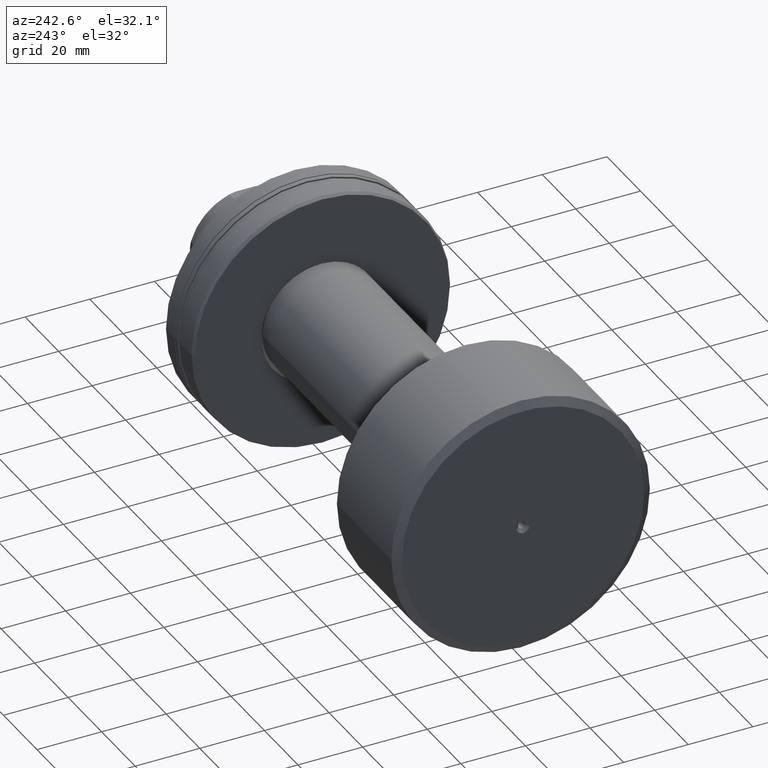
[diagram: clean part render]
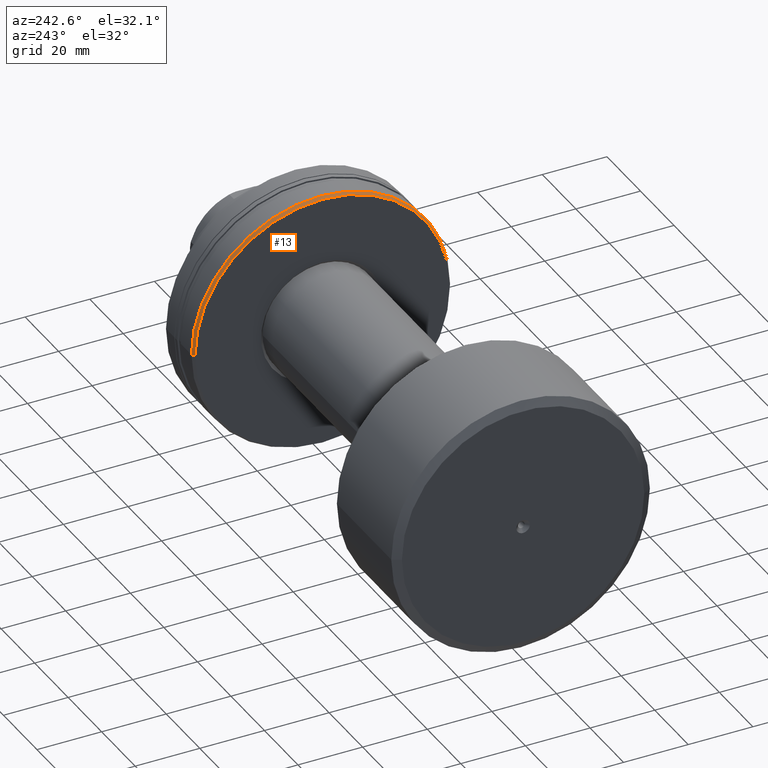
[diagram: same view with one face highlighted and labeled with its STEP entity id]
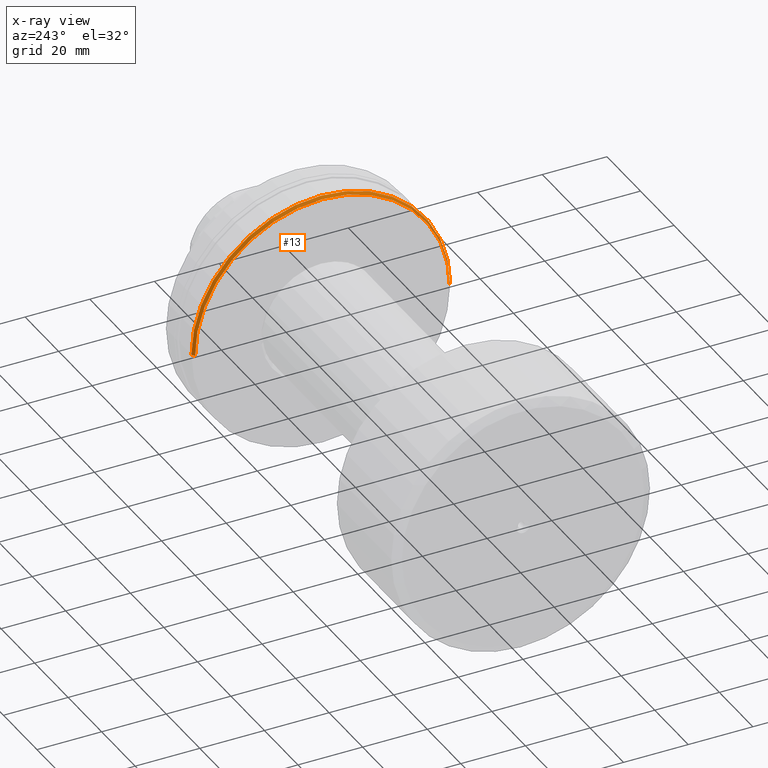
[diagram: x-ray of the same camera — body ghosted, the highlighted face saturated]
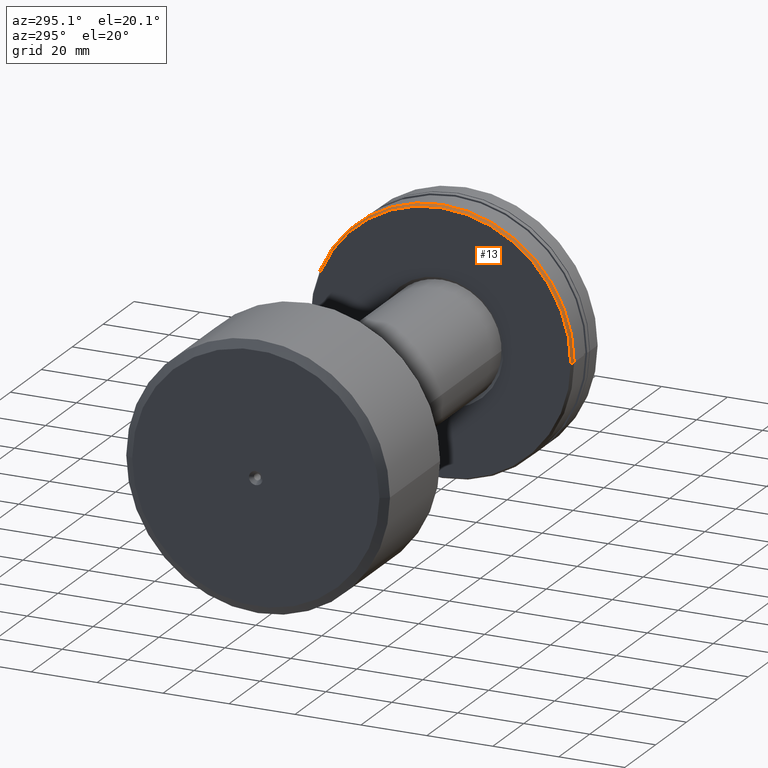
[diagram: same view with one face highlighted and labeled with its STEP entity id]
A machine part, auxiliary view. The second image highlights one B-rep face of the part: STEP entity #13.
The next image is the same camera in x-ray: the body ghosted, the highlighted face saturated — about 0% of this face is hidden behind the body in this view.
A second angle (auxiliary view) of the same face is appended — the face is thin or edge-on in the first view.
In plain terms, the highlighted conical surface has half-angle 30 deg.
Its self-contained STEP definition (entity closure, byte-faithful):
#13 = ADVANCED_FACE ( 'NONE', ( #468 ), #1106, .T. ) ;
#107 = VECTOR ( 'NONE', #1422, 1000.000000000000000 ) ;
#163 = DIRECTION ( 'NONE',  ( 0.8660254037844342667, 0.5000000000000074385, 0.000000000000000000 ) ) ;
#189 = ORIENTED_EDGE ( 'NONE', *, *, #2052, .F. ) ;
#194 = VERTEX_POINT ( 'NONE', #983 ) ;
#213 = DIRECTION ( 'NONE',  ( 1.000000000000000000, 3.738146982434194072E-16, -0.000000000000000000 ) ) ;
#291 = CARTESIAN_POINT ( 'NONE',  ( -40.20000000000000995, -3.708233295962654957E-15, 0.000000000000000000 ) ) ;
#370 = DIRECTION ( 'NONE',  ( -3.520257492222390077E-16, 1.000000000000000000, 0.000000000000000000 ) ) ;
#468 = FACE_OUTER_BOUND ( 'NONE', #2112, .T. ) ;
#510 = ORIENTED_EDGE ( 'NONE', *, *, #1958, .F. ) ;
#838 = EDGE_CURVE ( 'NONE', #1034, #194, #2194, .T. ) ;
#923 = EDGE_CURVE ( 'NONE', #194, #2033, #1593, .T. ) ;
#948 = CARTESIAN_POINT ( 'NONE',  ( -39.20000000000020890, 40.00000000000000000, 0.000000000000000000 ) ) ;
#983 = CARTESIAN_POINT ( 'NONE',  ( -40.19999999999999574, -39.42264973081048396, 4.863234688631922596E-15 ) ) ;
#1034 = VERTEX_POINT ( 'NONE', #1136 ) ;
#1039 = AXIS2_PLACEMENT_3D ( 'NONE', #291, #1496, #2249 ) ;
#1098 = CARTESIAN_POINT ( 'NONE',  ( -40.20000000000000995, -3.708233295962654957E-15, 0.000000000000000000 ) ) ;
#1106 = CONICAL_SURFACE ( 'NONE', #1039, 39.42264973081047685, 0.5235987755983071423 ) ;
#1111 = CARTESIAN_POINT ( 'NONE',  ( -39.20000000000019469, -3.334418597719306597E-15, 0.000000000000000000 ) ) ;
#1132 = DIRECTION ( 'NONE',  ( -3.469446951953613696E-16, 1.000000000000000000, 0.000000000000000000 ) ) ;
#1136 = CARTESIAN_POINT ( 'NONE',  ( -40.20000000000001705, 39.42264973081046975, 0.000000000000000000 ) ) ;
#1172 = ORIENTED_EDGE ( 'NONE', *, *, #838, .T. ) ;
#1261 = AXIS2_PLACEMENT_3D ( 'NONE', #1098, #213, #370 ) ;
#1292 = CARTESIAN_POINT ( 'NONE',  ( -39.20000000000018048, -40.00000000000001421, 4.898587196589413815E-15 ) ) ;
#1422 = DIRECTION ( 'NONE',  ( 0.8660254037844347108, -0.5000000000000067724, 6.123233995736853550E-17 ) ) ;
#1496 = DIRECTION ( 'NONE',  ( 1.000000000000000000, 3.738146982434194072E-16, -0.000000000000000000 ) ) ;
#1593 = LINE ( 'NONE', #2305, #107 ) ;
#1690 = ORIENTED_EDGE ( 'NONE', *, *, #923, .T. ) ;
#1758 = CARTESIAN_POINT ( 'NONE',  ( -40.20000000000001705, 39.42264973081046975, 0.000000000000000000 ) ) ;
#1791 = AXIS2_PLACEMENT_3D ( 'NONE', #1111, #1838, #1132 ) ;
#1838 = DIRECTION ( 'NONE',  ( 1.000000000000000000, 3.738146982434194072E-16, -0.000000000000000000 ) ) ;
#1935 = LINE ( 'NONE', #1758, #1948 ) ;
#1948 = VECTOR ( 'NONE', #163, 1000.000000000000227 ) ;
#1958 = EDGE_CURVE ( 'NONE', #1034, #2082, #1935, .T. ) ;
#2033 = VERTEX_POINT ( 'NONE', #1292 ) ;
#2052 = EDGE_CURVE ( 'NONE', #2082, #2033, #2166, .T. ) ;
#2082 = VERTEX_POINT ( 'NONE', #948 ) ;
#2112 = EDGE_LOOP ( 'NONE', ( #1172, #1690, #189, #510 ) ) ;
#2166 = CIRCLE ( 'NONE', #1791, 40.00000000000000711 ) ;
#2194 = CIRCLE ( 'NONE', #1261, 39.42264973081047685 ) ;
#2249 = DIRECTION ( 'NONE',  ( -3.520257492222390077E-16, 1.000000000000000000, 0.000000000000000000 ) ) ;
#2305 = CARTESIAN_POINT ( 'NONE',  ( -40.19999999999999574, -39.42264973081048396, 4.827882180674431377E-15 ) ) ;